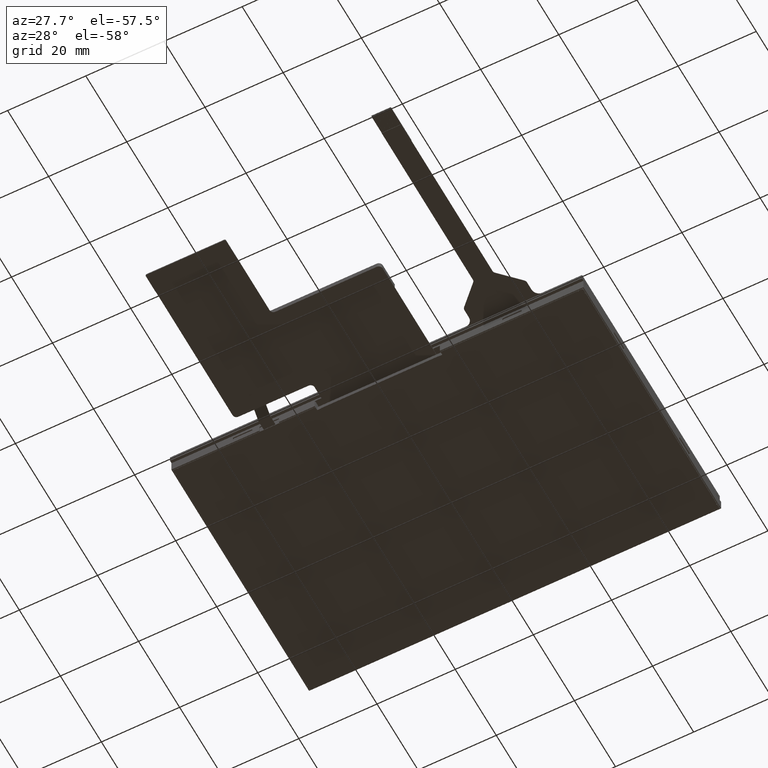
[diagram: clean part render]
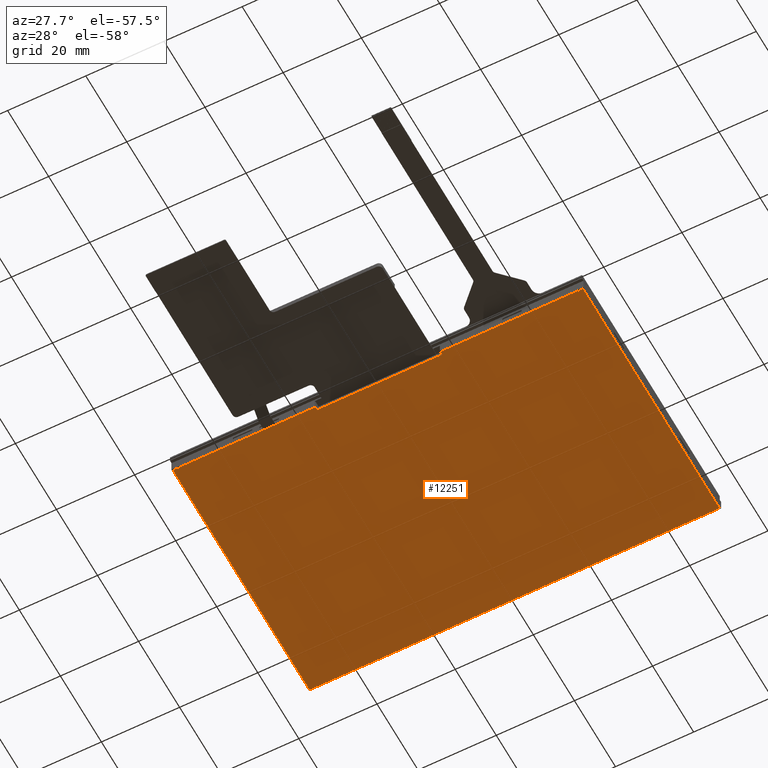
[diagram: same view with one face highlighted and labeled with its STEP entity id]
A machine part, auxiliary view. The second image highlights one B-rep face of the part: STEP entity #12251.
In plain terms, the highlighted planar face has unit normal (-0, -0, 1).
Its self-contained STEP definition (entity closure, byte-faithful):
#223=CIRCLE('',#12993,0.300000000000002);
#224=CIRCLE('',#12994,0.300000000000002);
#225=CIRCLE('',#12995,0.300000000000002);
#226=CIRCLE('',#12996,0.300000000000002);
#437=FACE_OUTER_BOUND('',#1082,.T.);
#1082=EDGE_LOOP('',(#9041,#9042,#9043,#9044,#9045,#9046,#9047,#9048,#9049,
#9050,#9051,#9052,#9053,#9054,#9055,#9056,#9057,#9058,#9059,#9060,#9061,
#9062,#9063,#9064,#9065,#9066,#9067,#9068,#9069,#9070,#9071,#9072,#9073,
#9074,#9075,#9076,#9077,#9078,#9079,#9080,#9081,#9082,#9083,#9084,#9085,
#9086,#9087,#9088));
#1819=LINE('',#17457,#3489);
#1837=LINE('',#17494,#3507);
#1961=LINE('',#17721,#3631);
#2022=LINE('',#17848,#3692);
#2036=LINE('',#17881,#3706);
#2109=LINE('',#18026,#3779);
#2110=LINE('',#18028,#3780);
#2111=LINE('',#18030,#3781);
#2112=LINE('',#18032,#3782);
#2113=LINE('',#18033,#3783);
#2114=LINE('',#18035,#3784);
#2115=LINE('',#18036,#3785);
#2116=LINE('',#18038,#3786);
#2117=LINE('',#18040,#3787);
#2118=LINE('',#18044,#3788);
#2119=LINE('',#18046,#3789);
#2120=LINE('',#18048,#3790);
#2121=LINE('',#18050,#3791);
#2122=LINE('',#18052,#3792);
#2123=LINE('',#18054,#3793);
#2124=LINE('',#18056,#3794);
#2125=LINE('',#18058,#3795);
#2126=LINE('',#18060,#3796);
#2127=LINE('',#18064,#3797);
#2128=LINE('',#18066,#3798);
#2129=LINE('',#18068,#3799);
#2130=LINE('',#18070,#3800);
#2131=LINE('',#18072,#3801);
#2132=LINE('',#18074,#3802);
#2133=LINE('',#18076,#3803);
#2134=LINE('',#18078,#3804);
#2135=LINE('',#18080,#3805);
#2136=LINE('',#18084,#3806);
#2137=LINE('',#18086,#3807);
#2138=LINE('',#18088,#3808);
#2139=LINE('',#18090,#3809);
#2140=LINE('',#18092,#3810);
#2141=LINE('',#18094,#3811);
#2142=LINE('',#18096,#3812);
#2143=LINE('',#18098,#3813);
#2144=LINE('',#18100,#3814);
#2145=LINE('',#18104,#3815);
#2146=LINE('',#18105,#3816);
#2147=LINE('',#18106,#3817);
#3489=VECTOR('',#14158,1000.);
#3507=VECTOR('',#14178,1000.);
#3631=VECTOR('',#14424,1000.);
#3692=VECTOR('',#14495,1000.);
#3706=VECTOR('',#14517,1000.);
#3779=VECTOR('',#14594,1000.);
#3780=VECTOR('',#14595,1000.);
#3781=VECTOR('',#14596,1000.);
#3782=VECTOR('',#14597,1000.);
#3783=VECTOR('',#14598,1000.);
#3784=VECTOR('',#14599,1000.);
#3785=VECTOR('',#14600,1000.);
#3786=VECTOR('',#14601,1000.);
#3787=VECTOR('',#14602,1000.);
#3788=VECTOR('',#14605,1000.);
#3789=VECTOR('',#14606,1000.);
#3790=VECTOR('',#14607,1000.);
#3791=VECTOR('',#14608,1000.);
#3792=VECTOR('',#14609,1000.);
#3793=VECTOR('',#14610,1000.);
#3794=VECTOR('',#14611,1000.);
#3795=VECTOR('',#14612,1000.);
#3796=VECTOR('',#14613,1000.);
#3797=VECTOR('',#14616,1000.);
#3798=VECTOR('',#14617,1000.);
#3799=VECTOR('',#14618,1000.);
#3800=VECTOR('',#14619,1000.);
#3801=VECTOR('',#14620,1000.);
#3802=VECTOR('',#14621,1000.);
#3803=VECTOR('',#14622,1000.);
#3804=VECTOR('',#14623,1000.);
#3805=VECTOR('',#14624,1000.);
#3806=VECTOR('',#14627,1000.);
#3807=VECTOR('',#14628,1000.);
#3808=VECTOR('',#14629,1000.);
#3809=VECTOR('',#14630,1000.);
#3810=VECTOR('',#14631,1000.);
#3811=VECTOR('',#14632,1000.);
#3812=VECTOR('',#14633,1000.);
#3813=VECTOR('',#14634,1000.);
#3814=VECTOR('',#14635,1000.);
#3815=VECTOR('',#14638,1000.);
#3816=VECTOR('',#14639,1000.);
#3817=VECTOR('',#14640,1000.);
#5180=VERTEX_POINT('',#17454);
#5181=VERTEX_POINT('',#17456);
#5198=VERTEX_POINT('',#17491);
#5199=VERTEX_POINT('',#17493);
#5241=VERTEX_POINT('',#17720);
#5301=VERTEX_POINT('',#17845);
#5302=VERTEX_POINT('',#17847);
#5316=VERTEX_POINT('',#17878);
#5317=VERTEX_POINT('',#17880);
#5387=VERTEX_POINT('',#18025);
#5388=VERTEX_POINT('',#18027);
#5389=VERTEX_POINT('',#18029);
#5390=VERTEX_POINT('',#18031);
#5391=VERTEX_POINT('',#18034);
#5392=VERTEX_POINT('',#18037);
#5393=VERTEX_POINT('',#18039);
#5394=VERTEX_POINT('',#18041);
#5395=VERTEX_POINT('',#18043);
#5396=VERTEX_POINT('',#18045);
#5397=VERTEX_POINT('',#18047);
#5398=VERTEX_POINT('',#18049);
#5399=VERTEX_POINT('',#18051);
#5400=VERTEX_POINT('',#18053);
#5401=VERTEX_POINT('',#18055);
#5402=VERTEX_POINT('',#18057);
#5403=VERTEX_POINT('',#18059);
#5404=VERTEX_POINT('',#18061);
#5405=VERTEX_POINT('',#18063);
#5406=VERTEX_POINT('',#18065);
#5407=VERTEX_POINT('',#18067);
#5408=VERTEX_POINT('',#18069);
#5409=VERTEX_POINT('',#18071);
#5410=VERTEX_POINT('',#18073);
#5411=VERTEX_POINT('',#18075);
#5412=VERTEX_POINT('',#18077);
#5413=VERTEX_POINT('',#18079);
#5414=VERTEX_POINT('',#18081);
#5415=VERTEX_POINT('',#18083);
#5416=VERTEX_POINT('',#18085);
#5417=VERTEX_POINT('',#18087);
#5418=VERTEX_POINT('',#18089);
#5419=VERTEX_POINT('',#18091);
#5420=VERTEX_POINT('',#18093);
#5421=VERTEX_POINT('',#18095);
#5422=VERTEX_POINT('',#18097);
#5423=VERTEX_POINT('',#18099);
#5424=VERTEX_POINT('',#18101);
#5425=VERTEX_POINT('',#18103);
#6461=EDGE_CURVE('',#5181,#5180,#1819,.T.);
#6479=EDGE_CURVE('',#5198,#5199,#1837,.T.);
#6607=EDGE_CURVE('',#5199,#5241,#1961,.T.);
#6669=EDGE_CURVE('',#5301,#5302,#2022,.T.);
#6686=EDGE_CURVE('',#5316,#5317,#2036,.T.);
#6759=EDGE_CURVE('',#5387,#5198,#2109,.T.);
#6760=EDGE_CURVE('',#5387,#5388,#2110,.T.);
#6761=EDGE_CURVE('',#5389,#5388,#2111,.T.);
#6762=EDGE_CURVE('',#5390,#5389,#2112,.T.);
#6763=EDGE_CURVE('',#5181,#5390,#2113,.T.);
#6764=EDGE_CURVE('',#5391,#5180,#2114,.T.);
#6765=EDGE_CURVE('',#5302,#5391,#2115,.T.);
#6766=EDGE_CURVE('',#5301,#5392,#2116,.T.);
#6767=EDGE_CURVE('',#5393,#5392,#2117,.T.);
#6768=EDGE_CURVE('',#5393,#5394,#223,.T.);
#6769=EDGE_CURVE('',#5395,#5394,#2118,.T.);
#6770=EDGE_CURVE('',#5396,#5395,#2119,.T.);
#6771=EDGE_CURVE('',#5397,#5396,#2120,.T.);
#6772=EDGE_CURVE('',#5397,#5398,#2121,.T.);
#6773=EDGE_CURVE('',#5399,#5398,#2122,.T.);
#6774=EDGE_CURVE('',#5400,#5399,#2123,.T.);
#6775=EDGE_CURVE('',#5401,#5400,#2124,.T.);
#6776=EDGE_CURVE('',#5401,#5402,#2125,.T.);
#6777=EDGE_CURVE('',#5403,#5402,#2126,.T.);
#6778=EDGE_CURVE('',#5403,#5404,#224,.T.);
#6779=EDGE_CURVE('',#5405,#5404,#2127,.T.);
#6780=EDGE_CURVE('',#5406,#5405,#2128,.T.);
#6781=EDGE_CURVE('',#5407,#5406,#2129,.T.);
#6782=EDGE_CURVE('',#5407,#5408,#2130,.T.);
#6783=EDGE_CURVE('',#5409,#5408,#2131,.T.);
#6784=EDGE_CURVE('',#5410,#5409,#2132,.T.);
#6785=EDGE_CURVE('',#5411,#5410,#2133,.T.);
#6786=EDGE_CURVE('',#5411,#5412,#2134,.T.);
#6787=EDGE_CURVE('',#5413,#5412,#2135,.T.);
#6788=EDGE_CURVE('',#5413,#5414,#225,.T.);
#6789=EDGE_CURVE('',#5415,#5414,#2136,.T.);
#6790=EDGE_CURVE('',#5416,#5415,#2137,.T.);
#6791=EDGE_CURVE('',#5417,#5416,#2138,.T.);
#6792=EDGE_CURVE('',#5417,#5418,#2139,.T.);
#6793=EDGE_CURVE('',#5419,#5418,#2140,.T.);
#6794=EDGE_CURVE('',#5420,#5419,#2141,.T.);
#6795=EDGE_CURVE('',#5421,#5420,#2142,.T.);
#6796=EDGE_CURVE('',#5421,#5422,#2143,.T.);
#6797=EDGE_CURVE('',#5423,#5422,#2144,.T.);
#6798=EDGE_CURVE('',#5423,#5424,#226,.T.);
#6799=EDGE_CURVE('',#5425,#5424,#2145,.T.);
#6800=EDGE_CURVE('',#5317,#5425,#2146,.T.);
#6801=EDGE_CURVE('',#5316,#5241,#2147,.T.);
#9041=ORIENTED_EDGE('',*,*,#6607,.F.);
#9042=ORIENTED_EDGE('',*,*,#6479,.F.);
#9043=ORIENTED_EDGE('',*,*,#6759,.F.);
#9044=ORIENTED_EDGE('',*,*,#6760,.T.);
#9045=ORIENTED_EDGE('',*,*,#6761,.F.);
#9046=ORIENTED_EDGE('',*,*,#6762,.F.);
#9047=ORIENTED_EDGE('',*,*,#6763,.F.);
#9048=ORIENTED_EDGE('',*,*,#6461,.T.);
#9049=ORIENTED_EDGE('',*,*,#6764,.F.);
#9050=ORIENTED_EDGE('',*,*,#6765,.F.);
#9051=ORIENTED_EDGE('',*,*,#6669,.F.);
#9052=ORIENTED_EDGE('',*,*,#6766,.T.);
#9053=ORIENTED_EDGE('',*,*,#6767,.F.);
#9054=ORIENTED_EDGE('',*,*,#6768,.T.);
#9055=ORIENTED_EDGE('',*,*,#6769,.F.);
#9056=ORIENTED_EDGE('',*,*,#6770,.F.);
#9057=ORIENTED_EDGE('',*,*,#6771,.F.);
#9058=ORIENTED_EDGE('',*,*,#6772,.T.);
#9059=ORIENTED_EDGE('',*,*,#6773,.F.);
#9060=ORIENTED_EDGE('',*,*,#6774,.F.);
#9061=ORIENTED_EDGE('',*,*,#6775,.F.);
#9062=ORIENTED_EDGE('',*,*,#6776,.T.);
#9063=ORIENTED_EDGE('',*,*,#6777,.F.);
#9064=ORIENTED_EDGE('',*,*,#6778,.T.);
#9065=ORIENTED_EDGE('',*,*,#6779,.F.);
#9066=ORIENTED_EDGE('',*,*,#6780,.F.);
#9067=ORIENTED_EDGE('',*,*,#6781,.F.);
#9068=ORIENTED_EDGE('',*,*,#6782,.T.);
#9069=ORIENTED_EDGE('',*,*,#6783,.F.);
#9070=ORIENTED_EDGE('',*,*,#6784,.F.);
#9071=ORIENTED_EDGE('',*,*,#6785,.F.);
#9072=ORIENTED_EDGE('',*,*,#6786,.T.);
#9073=ORIENTED_EDGE('',*,*,#6787,.F.);
#9074=ORIENTED_EDGE('',*,*,#6788,.T.);
#9075=ORIENTED_EDGE('',*,*,#6789,.F.);
#9076=ORIENTED_EDGE('',*,*,#6790,.F.);
#9077=ORIENTED_EDGE('',*,*,#6791,.F.);
#9078=ORIENTED_EDGE('',*,*,#6792,.T.);
#9079=ORIENTED_EDGE('',*,*,#6793,.F.);
#9080=ORIENTED_EDGE('',*,*,#6794,.F.);
#9081=ORIENTED_EDGE('',*,*,#6795,.F.);
#9082=ORIENTED_EDGE('',*,*,#6796,.T.);
#9083=ORIENTED_EDGE('',*,*,#6797,.F.);
#9084=ORIENTED_EDGE('',*,*,#6798,.T.);
#9085=ORIENTED_EDGE('',*,*,#6799,.F.);
#9086=ORIENTED_EDGE('',*,*,#6800,.F.);
#9087=ORIENTED_EDGE('',*,*,#6686,.F.);
#9088=ORIENTED_EDGE('',*,*,#6801,.T.);
#11658=PLANE('',#12992);
#12251=ADVANCED_FACE('',(#437),#11658,.F.);
#12992=AXIS2_PLACEMENT_3D('',#18024,#14592,#14593);
#12993=AXIS2_PLACEMENT_3D('',#18042,#14603,#14604);
#12994=AXIS2_PLACEMENT_3D('',#18062,#14614,#14615);
#12995=AXIS2_PLACEMENT_3D('',#18082,#14625,#14626);
#12996=AXIS2_PLACEMENT_3D('',#18102,#14636,#14637);
#14158=DIRECTION('',(8.88178419700111E-16,-1.,4.93038065763141E-32));
#14178=DIRECTION('',(8.88178419700111E-16,-1.,4.93038065763141E-32));
#14424=DIRECTION('',(1.,8.88178419700111E-16,5.83882195012889E-17));
#14495=DIRECTION('',(1.,8.88178419700111E-16,5.83882195012889E-17));
#14517=DIRECTION('',(1.,8.88178419700111E-16,5.83882195012889E-17));
#14592=DIRECTION('center_axis',(-5.83882195012889E-17,-2.55534994944385E-33,
1.));
#14593=DIRECTION('ref_axis',(8.88178419700111E-16,-1.,4.93038065763141E-32));
#14594=DIRECTION('',(1.,8.88178419700111E-16,5.83882195012889E-17));
#14595=DIRECTION('',(8.88178419700111E-16,-1.,4.93038065763141E-32));
#14596=DIRECTION('',(1.,8.88178419700111E-16,5.83882195012889E-17));
#14597=DIRECTION('',(8.88178419700111E-16,-1.,4.93038065763141E-32));
#14598=DIRECTION('',(1.,8.88178419700111E-16,5.83882195012889E-17));
#14599=DIRECTION('',(1.,8.88178419700111E-16,5.83882195012889E-17));
#14600=DIRECTION('',(8.88178419700111E-16,-1.,4.93038065763141E-32));
#14601=DIRECTION('',(8.88178419700111E-16,-1.,4.93038065763141E-32));
#14602=DIRECTION('',(1.,8.88178419700111E-16,5.83882195012889E-17));
#14603=DIRECTION('center_axis',(5.83882195012889E-17,2.55534994944385E-33,
-1.));
#14604=DIRECTION('ref_axis',(8.88178419700111E-16,-1.,4.93038065763141E-32));
#14605=DIRECTION('',(8.88178419700111E-16,-1.,4.93038065763141E-32));
#14606=DIRECTION('',(-1.,-8.88178419700111E-16,-5.83882195012889E-17));
#14607=DIRECTION('',(8.88178419700111E-16,-1.,4.93038065763141E-32));
#14608=DIRECTION('',(-1.,-8.88178419700111E-16,-5.83882195012889E-17));
#14609=DIRECTION('',(8.88178419700111E-16,-1.,4.93038065763141E-32));
#14610=DIRECTION('',(-1.,-8.88178419700111E-16,-5.83882195012889E-17));
#14611=DIRECTION('',(8.88178419700111E-16,-1.,4.93038065763141E-32));
#14612=DIRECTION('',(-1.,-8.88178419700111E-16,-5.83882195012889E-17));
#14613=DIRECTION('',(8.88178419700111E-16,-1.,4.93038065763141E-32));
#14614=DIRECTION('center_axis',(5.83882195012889E-17,2.55534994944385E-33,
-1.));
#14615=DIRECTION('ref_axis',(8.88178419700111E-16,-1.,4.93038065763141E-32));
#14616=DIRECTION('',(-1.,-8.88178419700111E-16,-5.83882195012889E-17));
#14617=DIRECTION('',(-8.88178419700111E-16,1.,-4.93038065763141E-32));
#14618=DIRECTION('',(-1.,-8.88178419700111E-16,-5.83882195012889E-17));
#14619=DIRECTION('',(-8.88178419700111E-16,1.,-4.93038065763141E-32));
#14620=DIRECTION('',(-1.,-8.88178419700111E-16,-5.83882195012889E-17));
#14621=DIRECTION('',(-8.88178419700111E-16,1.,-4.93038065763141E-32));
#14622=DIRECTION('',(-1.,-8.88178419700111E-16,-5.83882195012889E-17));
#14623=DIRECTION('',(-8.88178419700111E-16,1.,-4.93038065763141E-32));
#14624=DIRECTION('',(-1.,-8.88178419700111E-16,-5.83882195012889E-17));
#14625=DIRECTION('center_axis',(5.83882195012889E-17,2.55534994944385E-33,
-1.));
#14626=DIRECTION('ref_axis',(8.88178419700111E-16,-1.,4.93038065763141E-32));
#14627=DIRECTION('',(-8.88178419700111E-16,1.,-4.93038065763141E-32));
#14628=DIRECTION('',(1.,8.88178419700111E-16,5.83882195012889E-17));
#14629=DIRECTION('',(-8.88178419700111E-16,1.,-4.93038065763141E-32));
#14630=DIRECTION('',(1.,8.88178419700111E-16,5.83882195012889E-17));
#14631=DIRECTION('',(-8.88178419700111E-16,1.,-4.93038065763141E-32));
#14632=DIRECTION('',(1.,8.88178419700111E-16,5.83882195012889E-17));
#14633=DIRECTION('',(-8.88178419700111E-16,1.,-4.93038065763141E-32));
#14634=DIRECTION('',(1.,8.88178419700111E-16,5.83882195012889E-17));
#14635=DIRECTION('',(-8.88178419700111E-16,1.,-4.93038065763141E-32));
#14636=DIRECTION('center_axis',(5.83882195012889E-17,2.55534994944385E-33,
-1.));
#14637=DIRECTION('ref_axis',(8.88178419700111E-16,-1.,4.93038065763141E-32));
#14638=DIRECTION('',(1.,8.88178419700111E-16,5.83882195012889E-17));
#14639=DIRECTION('',(8.88178419700111E-16,-1.,4.93038065763141E-32));
#14640=DIRECTION('',(8.88178419700111E-16,-1.,4.93038065763141E-32));
#17454=CARTESIAN_POINT('',(-16.0500000000001,-35.6720000000018,-4.35999999999993));
#17456=CARTESIAN_POINT('',(-16.0500000000001,-34.7720000000018,-4.35999999999993));
#17457=CARTESIAN_POINT('',(-16.0500000000001,-34.8220000000018,-4.35999999999993));
#17491=CARTESIAN_POINT('',(15.9499999999999,-34.7720000000017,-4.35999999999993));
#17493=CARTESIAN_POINT('',(15.9499999999999,-35.6720000000017,-4.35999999999993));
#17494=CARTESIAN_POINT('',(15.9499999999999,-34.8220000000017,-4.35999999999993));
#17720=CARTESIAN_POINT('',(51.1,-35.6720000000017,-4.35999999999993));
#17721=CARTESIAN_POINT('',(52.4,-35.6720000000017,-4.35999999999993));
#17845=CARTESIAN_POINT('',(-51.3000000000001,-35.4720000000018,-4.35999999999993));
#17847=CARTESIAN_POINT('',(-51.2000000000001,-35.4720000000018,-4.35999999999993));
#17848=CARTESIAN_POINT('',(-51.3000000000001,-35.4720000000018,-4.35999999999993));
#17878=CARTESIAN_POINT('',(51.1,-35.4720000000017,-4.35999999999993));
#17880=CARTESIAN_POINT('',(51.2,-35.4720000000017,-4.35999999999993));
#17881=CARTESIAN_POINT('',(51.2,-35.4720000000017,-4.35999999999993));
#18024=CARTESIAN_POINT('Origin',(-0.0500000000001044,-2.37200000000174,
-4.35999999999993));
#18025=CARTESIAN_POINT('',(14.9499999999999,-34.7720000000017,-4.35999999999993));
#18026=CARTESIAN_POINT('',(15.9499999999999,-34.7720000000017,-4.35999999999993));
#18027=CARTESIAN_POINT('',(14.9499999999999,-34.8220000000017,-4.35999999999993));
#18028=CARTESIAN_POINT('',(14.9499999999999,-34.7720000000017,-4.35999999999993));
#18029=CARTESIAN_POINT('',(-15.0500000000001,-34.8220000000018,-4.35999999999993));
#18030=CARTESIAN_POINT('',(15.9499999999999,-34.8220000000017,-4.35999999999993));
#18031=CARTESIAN_POINT('',(-15.0500000000001,-34.7720000000018,-4.35999999999993));
#18032=CARTESIAN_POINT('',(-15.0500000000001,-34.7720000000018,-4.35999999999993));
#18033=CARTESIAN_POINT('',(-16.0500000000001,-34.7720000000018,-4.35999999999993));
#18034=CARTESIAN_POINT('',(-51.2000000000001,-35.6720000000018,-4.35999999999993));
#18035=CARTESIAN_POINT('',(52.4,-35.6720000000017,-4.35999999999993));
#18036=CARTESIAN_POINT('',(-51.2000000000001,-35.4720000000018,-4.35999999999993));
#18037=CARTESIAN_POINT('',(-51.3000000000001,-35.6720000000018,-4.35999999999993));
#18038=CARTESIAN_POINT('',(-51.3000000000001,-35.4720000000018,-4.35999999999993));
#18039=CARTESIAN_POINT('',(-52.2000000000001,-35.6720000000018,-4.35999999999993));
#18040=CARTESIAN_POINT('',(52.4,-35.6720000000017,-4.35999999999993));
#18041=CARTESIAN_POINT('',(-52.5000000000001,-35.3720000000018,-4.35999999999993));
#18042=CARTESIAN_POINT('Origin',(-52.2000000000001,-35.3720000000018,-4.35999999999993));
#18043=CARTESIAN_POINT('',(-52.5000000000001,-34.4720000000018,-4.35999999999993));
#18044=CARTESIAN_POINT('',(-52.5000000000001,-35.6720000000018,-4.35999999999993));
#18045=CARTESIAN_POINT('',(-52.3000000000001,-34.4720000000018,-4.35999999999993));
#18046=CARTESIAN_POINT('',(-52.3000000000001,-34.4720000000018,-4.35999999999993));
#18047=CARTESIAN_POINT('',(-52.3000000000001,-34.3720000000018,-4.35999999999993));
#18048=CARTESIAN_POINT('',(-52.3000000000001,-34.4720000000018,-4.35999999999993));
#18049=CARTESIAN_POINT('',(-52.5000000000001,-34.3720000000018,-4.35999999999993));
#18050=CARTESIAN_POINT('',(-52.3000000000001,-34.3720000000018,-4.35999999999993));
#18051=CARTESIAN_POINT('',(-52.5000000000002,29.6279999999982,-4.35999999999993));
#18052=CARTESIAN_POINT('',(-52.5000000000001,-35.6720000000018,-4.35999999999993));
#18053=CARTESIAN_POINT('',(-52.3000000000002,29.6279999999982,-4.35999999999993));
#18054=CARTESIAN_POINT('',(-52.3000000000002,29.6279999999982,-4.35999999999993));
#18055=CARTESIAN_POINT('',(-52.3000000000002,29.7279999999982,-4.35999999999993));
#18056=CARTESIAN_POINT('',(-52.3000000000002,29.7279999999982,-4.35999999999993));
#18057=CARTESIAN_POINT('',(-52.5000000000002,29.7279999999982,-4.35999999999993));
#18058=CARTESIAN_POINT('',(-52.3000000000002,29.7279999999982,-4.35999999999993));
#18059=CARTESIAN_POINT('',(-52.5000000000002,30.6279999999982,-4.35999999999993));
#18060=CARTESIAN_POINT('',(-52.5000000000001,-35.6720000000018,-4.35999999999993));
#18061=CARTESIAN_POINT('',(-52.2000000000002,30.9279999999982,-4.35999999999993));
#18062=CARTESIAN_POINT('Origin',(-52.2000000000002,30.6279999999982,-4.35999999999993));
#18063=CARTESIAN_POINT('',(-51.3000000000002,30.9279999999982,-4.35999999999993));
#18064=CARTESIAN_POINT('',(52.3999999999999,30.9279999999983,-4.35999999999993));
#18065=CARTESIAN_POINT('',(-51.3000000000002,30.7279999999982,-4.35999999999993));
#18066=CARTESIAN_POINT('',(-51.3000000000002,30.7279999999982,-4.35999999999993));
#18067=CARTESIAN_POINT('',(-51.2000000000002,30.7279999999982,-4.35999999999993));
#18068=CARTESIAN_POINT('',(-51.3000000000002,30.7279999999982,-4.35999999999993));
#18069=CARTESIAN_POINT('',(-51.2000000000002,30.9279999999982,-4.35999999999993));
#18070=CARTESIAN_POINT('',(-51.2000000000002,30.7279999999982,-4.35999999999993));
#18071=CARTESIAN_POINT('',(51.0999999999999,30.9279999999983,-4.35999999999993));
#18072=CARTESIAN_POINT('',(52.3999999999999,30.9279999999983,-4.35999999999993));
#18073=CARTESIAN_POINT('',(51.0999999999999,30.7279999999983,-4.35999999999993));
#18074=CARTESIAN_POINT('',(51.0999999999999,30.7279999999983,-4.35999999999993));
#18075=CARTESIAN_POINT('',(51.1999999999999,30.7279999999983,-4.35999999999993));
#18076=CARTESIAN_POINT('',(51.1999999999999,30.7279999999983,-4.35999999999993));
#18077=CARTESIAN_POINT('',(51.1999999999999,30.9279999999983,-4.35999999999993));
#18078=CARTESIAN_POINT('',(51.1999999999999,30.7279999999983,-4.35999999999993));
#18079=CARTESIAN_POINT('',(52.0999999999999,30.9279999999983,-4.35999999999993));
#18080=CARTESIAN_POINT('',(52.3999999999999,30.9279999999983,-4.35999999999993));
#18081=CARTESIAN_POINT('',(52.3999999999999,30.6279999999983,-4.35999999999993));
#18082=CARTESIAN_POINT('Origin',(52.0999999999999,30.6279999999983,-4.35999999999993));
#18083=CARTESIAN_POINT('',(52.3999999999999,29.7279999999983,-4.35999999999993));
#18084=CARTESIAN_POINT('',(52.4,-35.6720000000017,-4.35999999999993));
#18085=CARTESIAN_POINT('',(52.1999999999999,29.7279999999983,-4.35999999999993));
#18086=CARTESIAN_POINT('',(52.1999999999999,29.7279999999983,-4.35999999999993));
#18087=CARTESIAN_POINT('',(52.1999999999999,29.6279999999983,-4.35999999999993));
#18088=CARTESIAN_POINT('',(52.1999999999999,29.7279999999983,-4.35999999999993));
#18089=CARTESIAN_POINT('',(52.3999999999999,29.6279999999983,-4.35999999999993));
#18090=CARTESIAN_POINT('',(52.1999999999999,29.6279999999983,-4.35999999999993));
#18091=CARTESIAN_POINT('',(52.3999999999999,-34.3720000000017,-4.35999999999993));
#18092=CARTESIAN_POINT('',(52.4,-35.6720000000017,-4.35999999999993));
#18093=CARTESIAN_POINT('',(52.2,-34.3720000000017,-4.35999999999993));
#18094=CARTESIAN_POINT('',(52.2,-34.3720000000017,-4.35999999999993));
#18095=CARTESIAN_POINT('',(52.2,-34.4720000000017,-4.35999999999993));
#18096=CARTESIAN_POINT('',(52.2,-34.4720000000017,-4.35999999999993));
#18097=CARTESIAN_POINT('',(52.3999999999999,-34.4720000000017,-4.35999999999993));
#18098=CARTESIAN_POINT('',(52.2,-34.4720000000017,-4.35999999999993));
#18099=CARTESIAN_POINT('',(52.4,-35.3720000000017,-4.35999999999993));
#18100=CARTESIAN_POINT('',(52.4,-35.6720000000017,-4.35999999999993));
#18101=CARTESIAN_POINT('',(52.1,-35.6720000000017,-4.35999999999993));
#18102=CARTESIAN_POINT('Origin',(52.1,-35.3720000000017,-4.35999999999993));
#18103=CARTESIAN_POINT('',(51.2,-35.6720000000017,-4.35999999999993));
#18104=CARTESIAN_POINT('',(52.4,-35.6720000000017,-4.35999999999993));
#18105=CARTESIAN_POINT('',(51.2,-35.4720000000017,-4.35999999999993));
#18106=CARTESIAN_POINT('',(51.1,-35.4720000000017,-4.35999999999993));